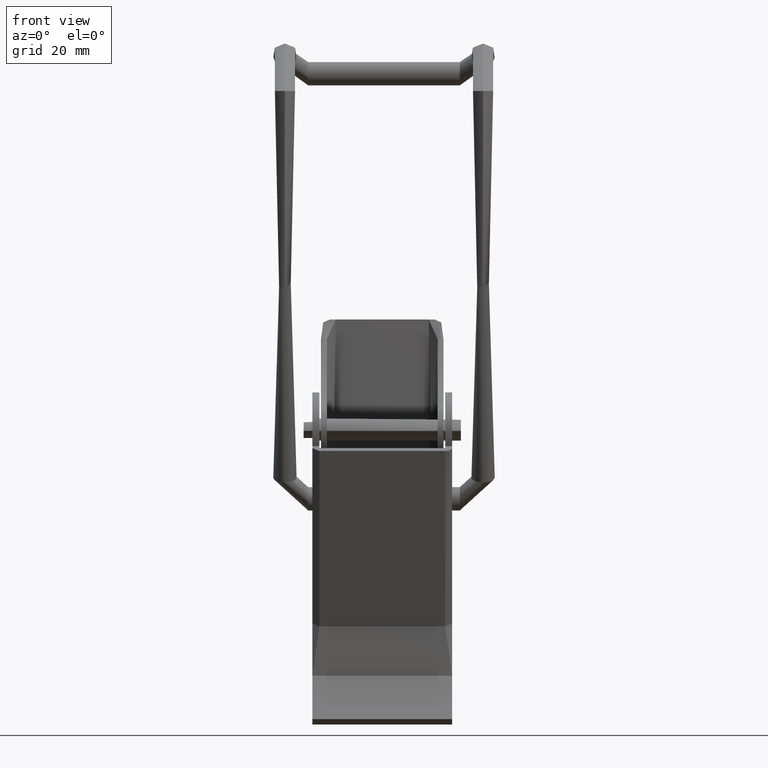
[diagram: clean part render]
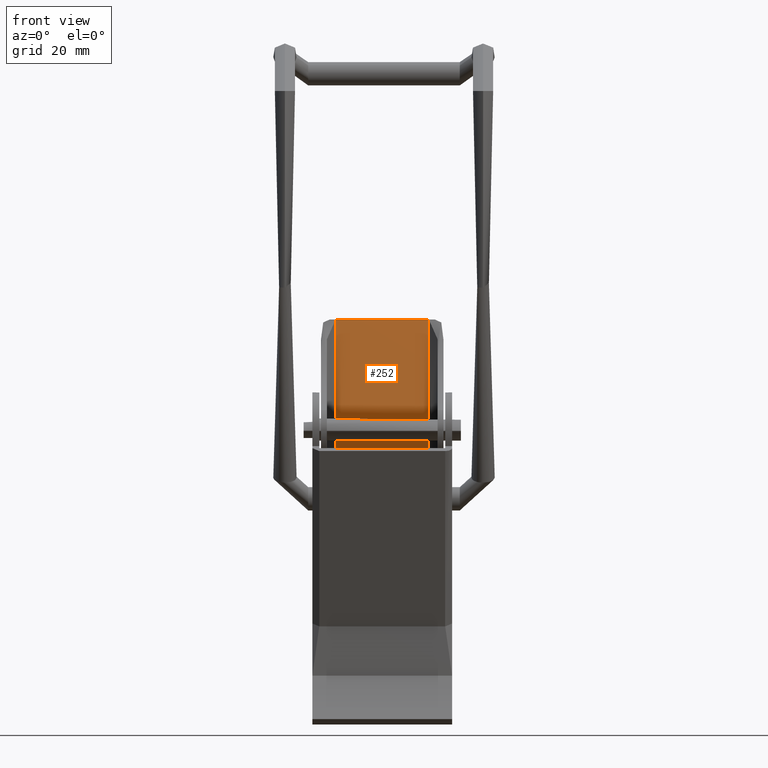
[diagram: same view with one face highlighted and labeled with its STEP entity id]
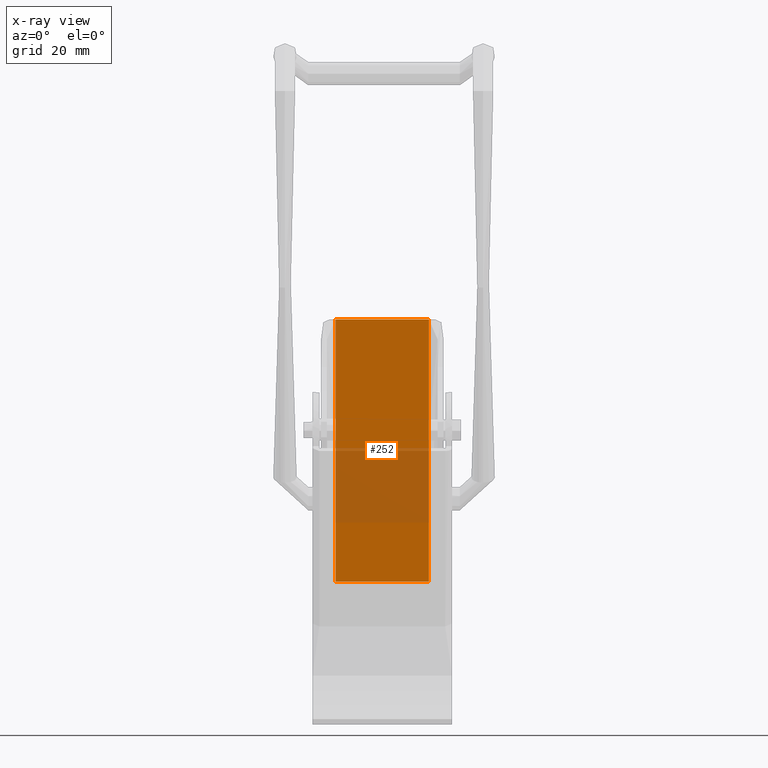
[diagram: x-ray of the same camera — body ghosted, the highlighted face saturated]
A machine part, front view. The second image highlights one B-rep face of the part: STEP entity #252.
The next image is the same camera in x-ray: the body ghosted, the highlighted face saturated — about 28% of this face is hidden behind the body in this view.
In plain terms, the highlighted planar face has unit normal (0, 1, 0).
Its self-contained STEP definition (entity closure, byte-faithful):
#252=ADVANCED_FACE('',(#963),#962,.F.);
#962=PLANE('',#1796);
#963=FACE_OUTER_BOUND('',#1797,.T.);
#1793=CARTESIAN_POINT('',(3.05000000000E+01,9.00000000000E-01,-1.10000000000E+01));
#1794=DIRECTION('',(0.00000000000E+00,0.00000000000E+00,-1.00000000000E+00));
#1795=DIRECTION('',(-1.00000000000E+00,0.00000000000E+00,0.00000000000E+00));
#1796=AXIS2_PLACEMENT_3D('',#1793,#1794,#1795);
#1797=EDGE_LOOP('',(#2597,#2598,#2599,#2600,#2601,#2602));
#2597=ORIENTED_EDGE('',*,*,#2899,.T.);
#2598=ORIENTED_EDGE('',*,*,#2951,.F.);
#2599=ORIENTED_EDGE('',*,*,#2915,.T.);
#2600=ORIENTED_EDGE('',*,*,#2953,.T.);
#2601=ORIENTED_EDGE('',*,*,#2888,.F.);
#2602=ORIENTED_EDGE('',*,*,#2927,.F.);
#2888=EDGE_CURVE('',#3720,#3721,#3722,.T.);
#2899=EDGE_CURVE('',#3798,#3791,#3799,.T.);
#2915=EDGE_CURVE('',#3909,#3902,#3910,.T.);
#2927=EDGE_CURVE('',#3798,#3720,#3990,.T.);
#2951=EDGE_CURVE('',#3909,#3791,#4147,.T.);
#2953=EDGE_CURVE('',#3902,#3721,#4159,.T.);
#3720=VERTEX_POINT('',#5546);
#3721=VERTEX_POINT('',#5547);
#3722=LINE('',#5548,#5549);
#3791=VERTEX_POINT('',#5618);
#3798=VERTEX_POINT('',#5625);
#3799=LINE('',#5626,#5627);
#3902=VERTEX_POINT('',#5709);
#3909=VERTEX_POINT('',#5713);
#3910=LINE('',#5714,#5715);
#3990=LINE('',#5761,#5762);
#4147=LINE('',#5922,#5923);
#4159=LINE('',#5928,#5929);
#5546=CARTESIAN_POINT('',(2.60000000000E+01,2.50000000000E+00,-1.10000000000E+01));
#5547=CARTESIAN_POINT('',(0.00000000000E+00,2.50000000000E+00,-1.10000000000E+01));
#5548=CARTESIAN_POINT('',(2.60000000000E+01,2.50000000000E+00,-1.10000000000E+01));
#5549=VECTOR('',#5550,2.60000000000E+01);
#5550=DIRECTION('',(-1.00000000000E+00,0.00000000000E+00,0.00000000000E+00));
#5618=CARTESIAN_POINT('',(0.00000000000E+00,1.85000000000E+01,-1.10000000000E+01));
#5625=CARTESIAN_POINT('',(2.60000000000E+01,1.85000000000E+01,-1.10000000000E+01));
#5626=CARTESIAN_POINT('',(2.60000000000E+01,1.85000000000E+01,-1.10000000000E+01));
#5627=VECTOR('',#5628,2.60000000000E+01);
#5628=DIRECTION('',(-1.00000000000E+00,0.00000000000E+00,0.00000000000E+00));
#5709=CARTESIAN_POINT('',(-1.90000000000E+01,2.50000000000E+00,-1.10000000000E+01));
#5713=CARTESIAN_POINT('',(-1.90000000000E+01,1.85000000000E+01,-1.10000000000E+01));
#5714=CARTESIAN_POINT('',(-1.90000000000E+01,1.85000000000E+01,-1.10000000000E+01));
#5715=VECTOR('',#5716,1.60000000000E+01);
#5716=DIRECTION('',(0.00000000000E+00,-1.00000000000E+00,-9.32587340685E-15));
#5761=CARTESIAN_POINT('',(2.60000000000E+01,1.85000000000E+01,-1.10000000000E+01));
#5762=VECTOR('',#5763,1.60000000000E+01);
#5763=DIRECTION('',(0.00000000000E+00,-1.00000000000E+00,0.00000000000E+00));
#5922=CARTESIAN_POINT('',(-1.90000000000E+01,1.85000000000E+01,-1.10000000000E+01));
#5923=VECTOR('',#5924,1.90000000000E+01);
#5924=DIRECTION('',(1.00000000000E+00,0.00000000000E+00,0.00000000000E+00));
#5928=CARTESIAN_POINT('',(-1.90000000000E+01,2.50000000000E+00,-1.10000000000E+01));
#5929=VECTOR('',#5930,1.90000000000E+01);
#5930=DIRECTION('',(1.00000000000E+00,0.00000000000E+00,0.00000000000E+00));